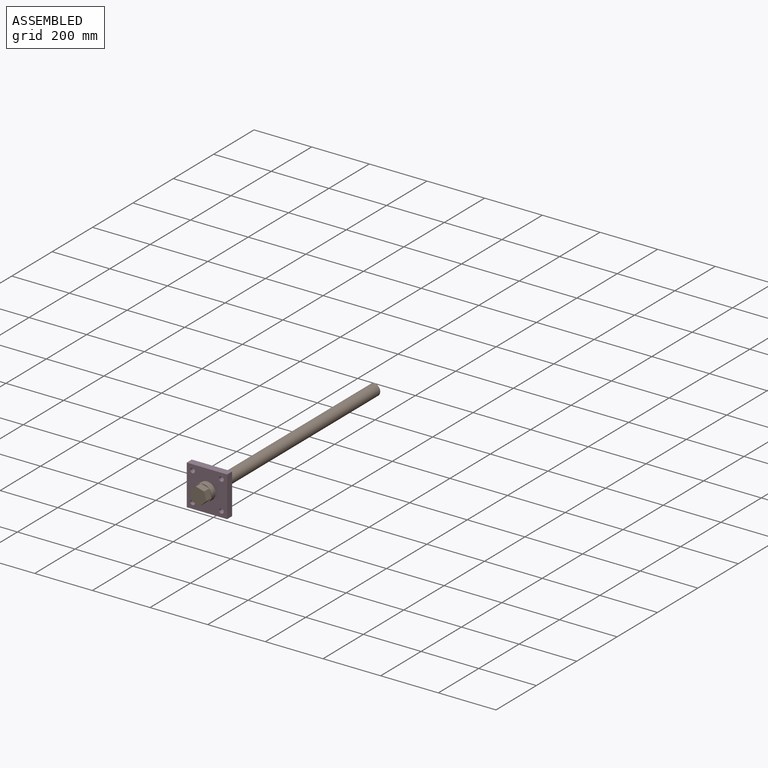
[diagram: assembled view]
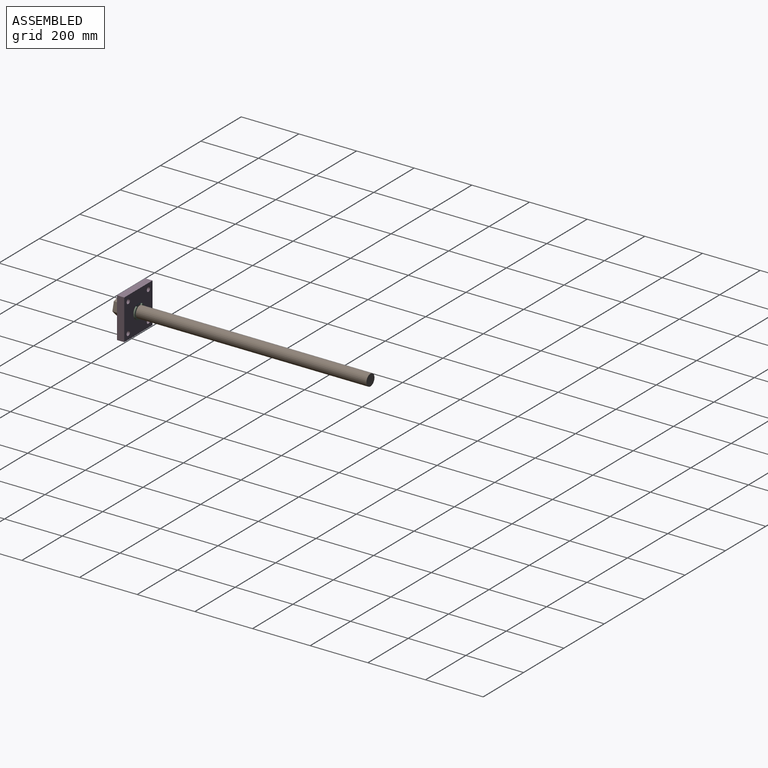
[diagram: assembled view, second angle]
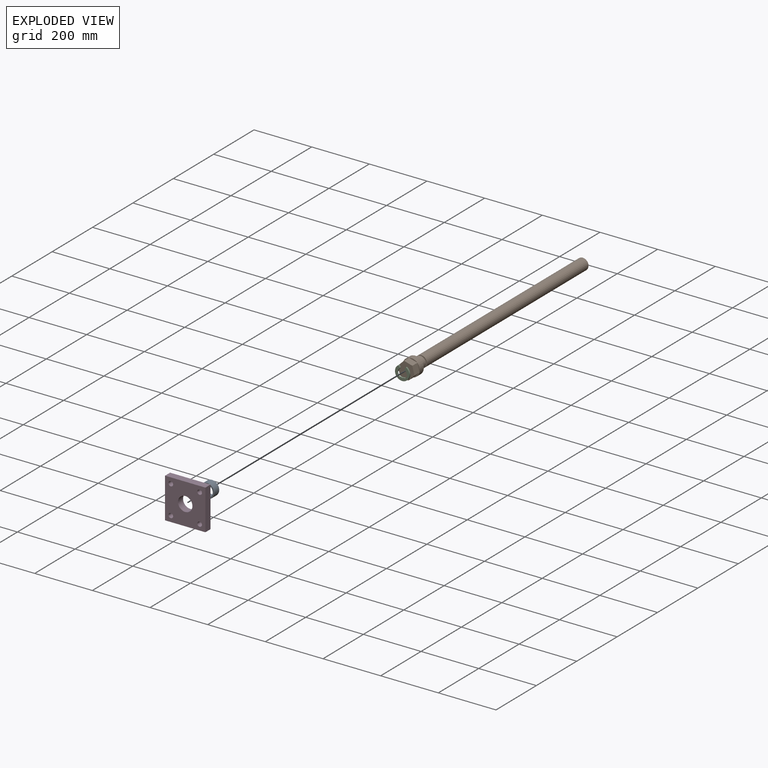
[diagram: exploded view]
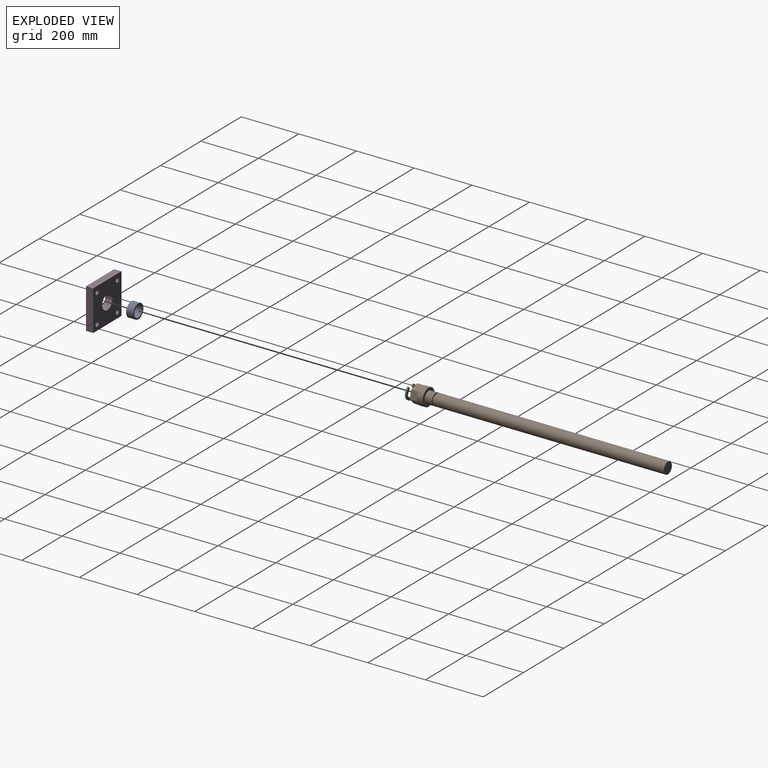
[diagram: exploded view, second angle]
ASSEMBLY  parts=4 mates=3
PART A: 4 faces, bbox 50x25x50 mm
  f0: cylinder r=20mm len=40mm, axis (0,1,0), area 3141.6mm2, adj f2,f3
  f1: cylinder r=25mm len=50mm, axis (0,1,0), area 3927mm2, adj f2,f3
  f2: plane 50x50mm, normal (0,-1,0), area 706.9mm2, adj f0,f1
  f3: plane 50x50mm, normal (0,1,0), area 706.9mm2, adj f0,f1
PART B: 21 faces, bbox 875x60x60 mm
  f0: plane 28.87x9.07mm, normal (1,0,0), area 81.5mm2, adj f6,f14
  f1: plane 29.08x8.51mm, normal (1,0,0), area 81.5mm2, adj f6,f19
  f2: plane 21.49x20.93mm, normal (1,0,0), area 81.5mm2, adj f6,f18
  f3: plane 28.87x9.07mm, normal (1,0,0), area 81.5mm2, adj f6,f17
  f4: plane 29.08x8.51mm, normal (1,0,0), area 81.5mm2, adj f6,f16
  f5: plane 21.49x20.93mm, normal (1,0,0), area 81.5mm2, adj f6,f15
  f6: cylinder r=30mm len=60mm, axis (1,0,0), area 3769.9mm2, adj f0,f1,f2,f3,f4,f5,f7
  f7: plane 60x60mm, normal (-1,0,0), area 1570.8mm2, adj f6,f8
  f8: cylinder r=20mm len=40mm, axis (1,0,0), area 3141.6mm2, adj f7,f9
  f9: plane 40x40mm, normal (-1,0,0), area 549.8mm2, adj f8,f10
  f10: cylinder r=15mm len=30mm, axis (1,0,0), area 471.2mm2, adj f9,f11
  f11: plane 40x40mm, normal (1,0,0), area 549.8mm2, adj f10,f12
  f12: cylinder r=20mm len=800mm, axis (1,0,0), area 100531mm2, adj f11,f13
  f13: plane 40x40mm, normal (-1,0,0), area 1256.6mm2, adj f12
  f14: plane 28.87x25mm, normal (0,0.96,-0.27), area 750mm2, adj f0,f15,f19,f20
  f15: plane 25x21.49mm, normal (0,0.72,0.7), area 750mm2, adj f5,f14,f16,f20
  f16: plane 29.08x25mm, normal (0,-0.25,0.97), area 750mm2, adj f4,f15,f17,f20
  f17: plane 28.87x25mm, normal (0,-0.96,0.27), area 750mm2, adj f3,f16,f18,f20
  f18: plane 25x21.49mm, normal (0,-0.72,-0.7), area 750mm2, adj f2,f17,f19,f20
  f19: plane 29.08x25mm, normal (0,0.25,-0.97), area 750mm2, adj f1,f14,f18,f20
  f20: plane 58.16x57.74mm, normal (1,0,0), area 2338.3mm2, adj f14,f15,f16,f17,f18,f19
PART C: 22 faces, bbox 50x5x45.8 mm
  f0: cylinder r=17.5mm len=15.16mm, axis (0,1,0), area 91.6mm2, adj f1,f11,f12,f13
  f1: plane 5x0.54mm, normal (-0.87,0,-0.5), area 3.1mm2, adj f0,f12,f13,f17
  f2: cylinder r=15mm len=11.84mm, axis (0,1,0), area 60.9mm2, adj f12,f13,f17,f18
  f3: plane 5x0.54mm, normal (0.87,0,-0.5), area 3.1mm2, adj f4,f12,f13,f18
  f4: cylinder r=17.5mm len=15.16mm, axis (0,1,0), area 91.6mm2, adj f3,f5,f12,f13
  f5: plane 5x0.62mm, normal (0,0,1), area 3.1mm2, adj f4,f12,f13,f19
  f6: cylinder r=15mm len=10.25mm, axis (0,1,0), area 60.9mm2, adj f12,f13,f19,f20
  f7: plane 5.22x5mm, normal (-0.87,0,-0.5), area 30.2mm2, adj f12,f13,f20,f21
  f8: cylinder r=25mm len=50mm, axis (0,1,0), area 632.7mm2, adj f12,f13,f14,f21
  f9: plane 5.22x5mm, normal (0.87,0,-0.5), area 30.2mm2, adj f12,f13,f14,f15
  f10: cylinder r=15mm len=10.25mm, axis (0,1,0), area 60.9mm2, adj f12,f13,f15,f16
  f11: plane 5x0.62mm, normal (0,0,1), area 3.1mm2, adj f0,f12,f13,f16
  f12: plane 50x45.84mm, normal (0,-1,0), area 955.9mm2, adj f0,f1,f2,f3,f4,f5,f6,f7
  f13: plane 50x45.84mm, normal (0,1,0), area 955.9mm2, adj f0,f1,f2,f3,f4,f5,f6,f7
  f14: cylinder r=2mm len=5mm, axis (0,1,0), area 16.6mm2, adj f8,f9,f12,f13
  f15: cylinder r=2mm len=5mm, axis (0,1,0), area 14.5mm2, adj f9,f10,f12,f13
  f16: cylinder r=2mm len=5mm, axis (0,1,0), area 14.5mm2, adj f10,f11,f12,f13
  f17: cylinder r=2mm len=5mm, axis (0,1,0), area 14.5mm2, adj f1,f2,f12,f13
  f18: cylinder r=2mm len=5mm, axis (0,1,0), area 14.5mm2, adj f2,f3,f12,f13
  f19: cylinder r=2mm len=5mm, axis (0,1,0), area 14.5mm2, adj f5,f6,f12,f13
  f20: cylinder r=2mm len=5mm, axis (0,1,0), area 14.5mm2, adj f6,f7,f12,f13
  f21: cylinder r=2mm len=5mm, axis (0,1,0), area 16.6mm2, adj f7,f8,f12,f13
PART D: 11 faces, bbox 140x25x140 mm
  f0: plane 140x25mm, normal (-1,0,0), area 3500mm2, adj f1,f8,f9,f10
  f1: plane 140x25mm, normal (0,0,-1), area 3500mm2, adj f0,f2,f9,f10
  f2: plane 140x25mm, normal (1,0,0), area 3500mm2, adj f1,f8,f9,f10
  f3: cylinder r=8mm len=25mm, axis (0,1,0), area 1256.6mm2, adj f9,f10
  f4: cylinder r=8mm len=25mm, axis (0,1,0), area 1256.6mm2, adj f9,f10
  f5: cylinder r=8mm len=25mm, axis (0,1,0), area 1256.6mm2, adj f9,f10
  f6: cylinder r=8mm len=25mm, axis (0,1,0), area 1256.6mm2, adj f9,f10
  f7: cylinder r=25mm len=50mm, axis (0,1,0), area 3927mm2, adj f9,f10
  f8: plane 140x25mm, normal (0,0,1), area 3500mm2, adj f0,f2,f9,f10
  f9: plane 140x140mm, normal (0,-1,0), area 16832.3mm2, adj f0,f1,f2,f3,f4,f5,f6,f7
  f10: plane 140x140mm, normal (0,1,0), area 16832.3mm2, adj f0,f1,f2,f3,f4,f5,f6,f7
PLACE A t=(-14.62,13.59,14.3)mm
PLACE B rot(axis=(-0.58,0.58,-0.58),120deg) t=(-14.62,393.59,14.3)mm
PLACE C rot(axis=(1,0,0),180deg) t=(-14.62,13.59,14.3)mm
PLACE D t=(-14.62,13.59,14.3)mm fixed
MATE fastened A.f0 <-> D.f7  axis (0,-1,0) through (-14.62,-11.41,14.3)mm
MATE fastened C.f0 <-> B.f6  axis (0,1,0) through (-14.62,18.59,14.3)mm
MATE revolute B.f6 <-> A.f0  axis (0,1,0) through (-14.62,-11.41,14.3)mm
